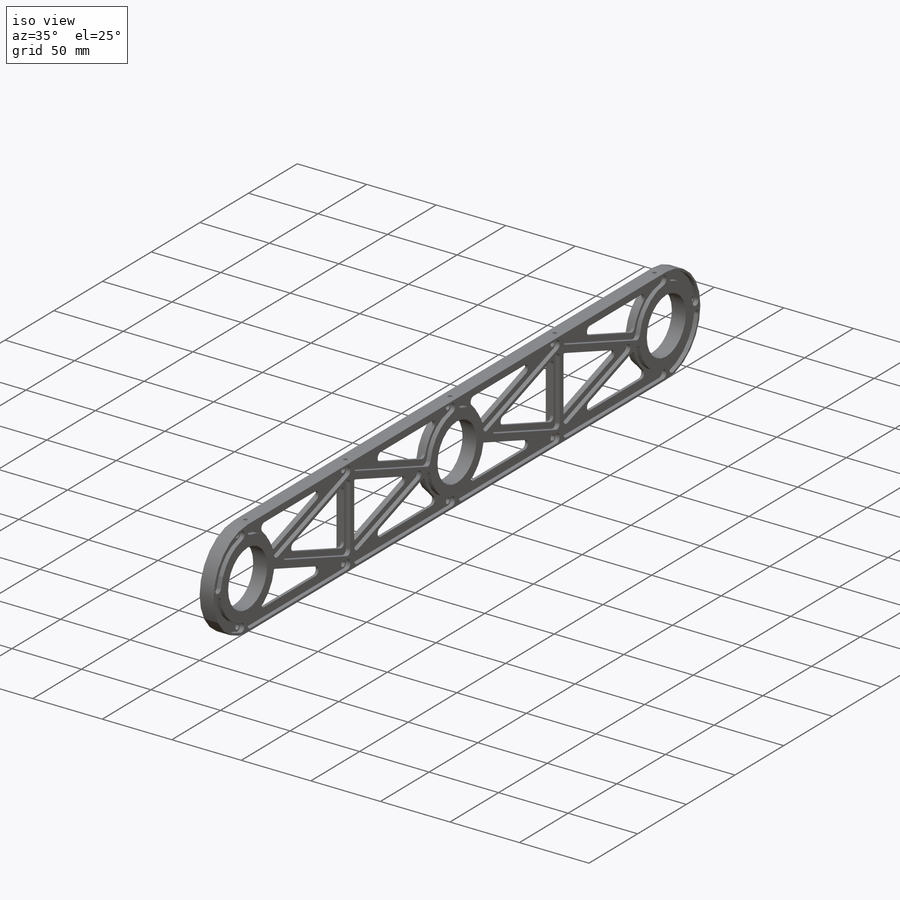
[diagram: iso view]
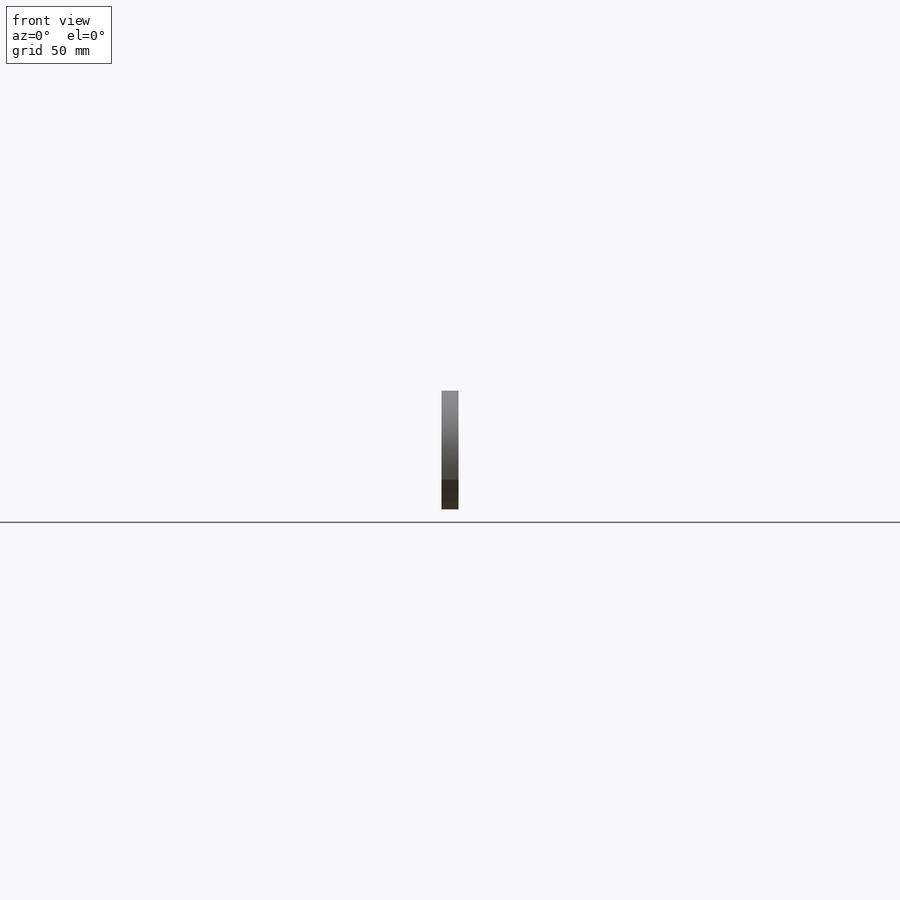
[diagram: front view]
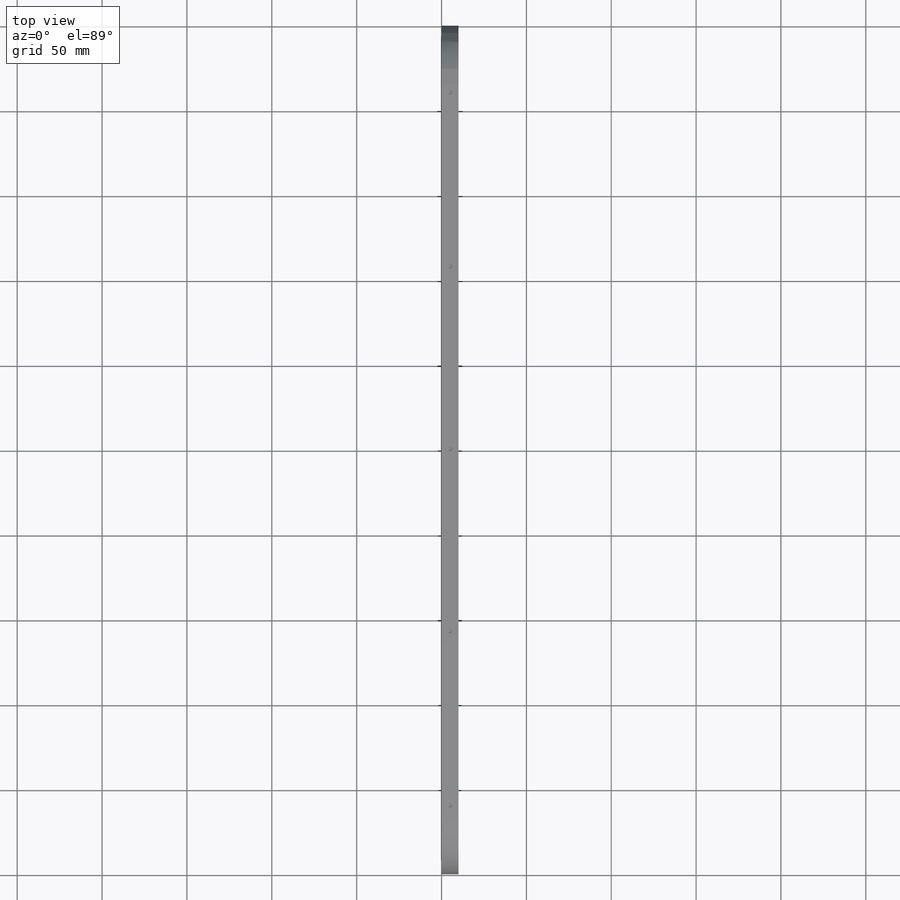
[diagram: top view]
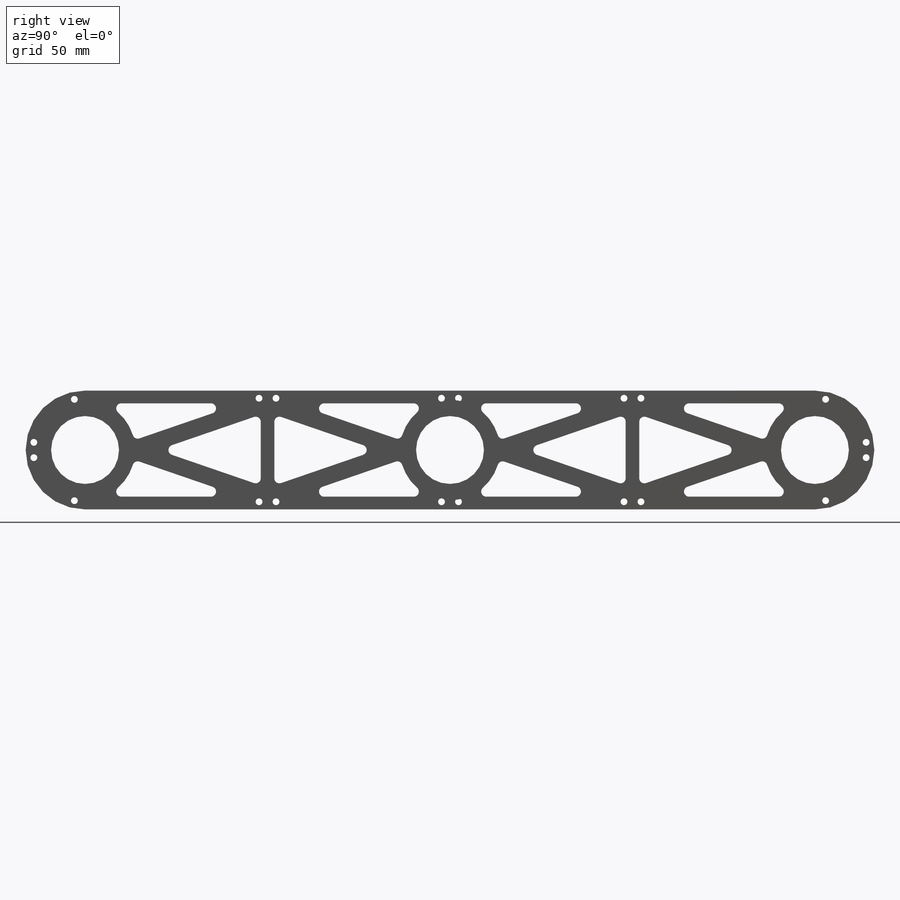
[diagram: right view]
SOLIDWORKS PART (.sldprt)
format: sldprt  version: not decoded by parser v0  size: 1,334,784 bytes
history: native  units: mm
features: sketch x16, extrude x6, thread x5, cut_extrude x4, hole x2, mirror x2, material x1, plane x1, fillet x1 (+12 scaffold rows collapsed)
feature tree (50):
  scaffold x12  (default folders/planes/origin — collapsed)
  material  "7050-T73510"
  sketch  "Sketch1"  dims[c1.D3=70.0mm c1.D1=~24.310079mm c1.D2=~92.299753mm c2.D1=500.0mm c2.D2=70.0mm c2.D3=35.0mm]
  extrude  "Boss-Extrude1"  Depth=10mm
  sketch  "Sketch2"  dims[c1.D1=40.0mm c1.D2=40.0mm c2.D1=~76.957328mm c2.D3=215.0mm]
  cut_extrude  "Cut-Extrude1"  Depth=10mm
  sketch  "Sketch3"  dims[c1.D1=55.0mm c1.D2=55.0mm c1.D3=160.0mm c1.D5=3.0mm c1.D6=4.0mm c2.D5=4.0mm c2.D3=5.0mm c2.D4=5.0mm]
  cut_extrude  "Cut-Extrude2"  Depth=10mm
  sketch  "Sketch5"  dims[c1.D1=~51.668836mm c1.D2=55.0mm c2.D1=2.0mm c2.D2=~60.479254mm c3.D1=6.0mm c3.D2=6.0mm]
  cut_extrude  "Cut-Extrude3"  Depth=5mm
  sketch  "Sketch4"  dims[c1.D1=27.5mm c1.D9=33.5mm c2.D1=5.0mm c2.D4=2.5mm c2.D5=2.5mm c2.D2=2.0mm c2.D3=2.0mm c3.D4=4.0mm c3.D5=2.0mm c3.D6=2.0mm c3.D7=~57.114866mm c3.D8=~51.923832mm c3.D10=~4.423832mm c3.D11=~57.423832mm c3.D12=66.0mm c3.D13=3.0mm c3.D14=1.5mm c3.D15=1.5mm c3.D16=2.0mm c3.D17=~55.739866mm c4.D12=10.0mm c4.D17=15.0mm c4.D2=1.0mm c4.D3=1.0mm]
  extrude  "Boss-Extrude2"  Depth=6mm
  sketch  "Sketch6"  dims[c1.D1=55.0mm c1.D2=55.0mm c1.D3=66.0mm c2.D1=2.0mm c2.D3=~0.217541mm c3.D1=6.0mm]
  cut_extrude  "Cut-Extrude4"  Depth=3mm
  sketch  "Sketch7"  dims[c1.D7=33.0mm c1.D1=87.5mm c1.D4=87.5mm c1.D5=2.0mm c1.D6=2.0mm c2.D7=~5.473245mm c3.D7=~5.653681deg c4.D7=3.0mm c4.D8=1.5mm c4.D9=1.5mm c4.D10=~55.396116mm c4.D2=1.0mm c4.D3=1.0mm c5.D8=1.5mm c5.D9=1.5mm]
  extrude  "Boss-Extrude3"  Depth=3mm
  sketch  "Sketch8"  dims[D1=~83.051957mm]
  sketch  "Sketch9"  dims[D1=~6.438842mm]
  plane  "Plane1"
  sketch  "Sketch10"  dims[c1.D1=~69.666643mm c1.D2=~54.611234mm c2.D1=2.0mm c2.D2=2.0mm]
  extrude  "Boss-Extrude4"  Depth=2mm
  sketch  "Sketch11"  dims[D1=2.0mm D2=~8.27624mm]
  extrude  "Boss-Extrude5"  Depth=10mm
  fillet  "Fillet3"  Radius=3mm
  hole  "Ø4.0mm Dowel Hole1"  Diameter=4mm Depth=17.29mm
  sketch  "Sketch13"
  sketch  "Sketch12"  dims[hole-wizard template sketch: 47 standard entries collapsed; hole parameters kept: c15.Hole Depth=17.29mm c15.D3=~14.816244mm c15.Drill Angle=118.0deg]
  mirror  "Mirror8"
  sketch  "Sketch14"  dims[D1=1.5mm D2=1.5mm]
  extrude  "Boss-Extrude6"  Depth=10mm
  hole  "M3 Tapped Hole1"  Diameter=2.5mm Depth=7.5mm
  sketch  "Sketch16"  dims[c1.D1=5.0mm c1.D2=~6.858669mm c2.D1=5.0mm c2.D2=5.0mm c2.D3=5.0mm c2.D4=107.5mm c2.D5=0.0mm c2.D6=107.5mm]
  sketch  "Sketch15"  dims[hole-wizard template sketch: 50 standard entries collapsed; hole parameters above]
  thread  "Hole Thread1"  Diameter=6mm  [1 undecoded]
  thread  "Hole Thread2"  Diameter=6mm  [1 undecoded]
  thread  "Hole Thread3"  Diameter=6mm  [1 undecoded]
  thread  "Hole Thread4"  Diameter=6mm  [1 undecoded]
  thread  "Hole Thread5"  Diameter=6mm  [1 undecoded]
  mirror  "Mirror9"
decode coverage: 33 of 36 modeling features carry decoded parameters
note: ~ marks probable driven/reference dimensions
note: 5 parameter values undecoded
note: suppression state not decoded; provenance and decode notes live in map.json
